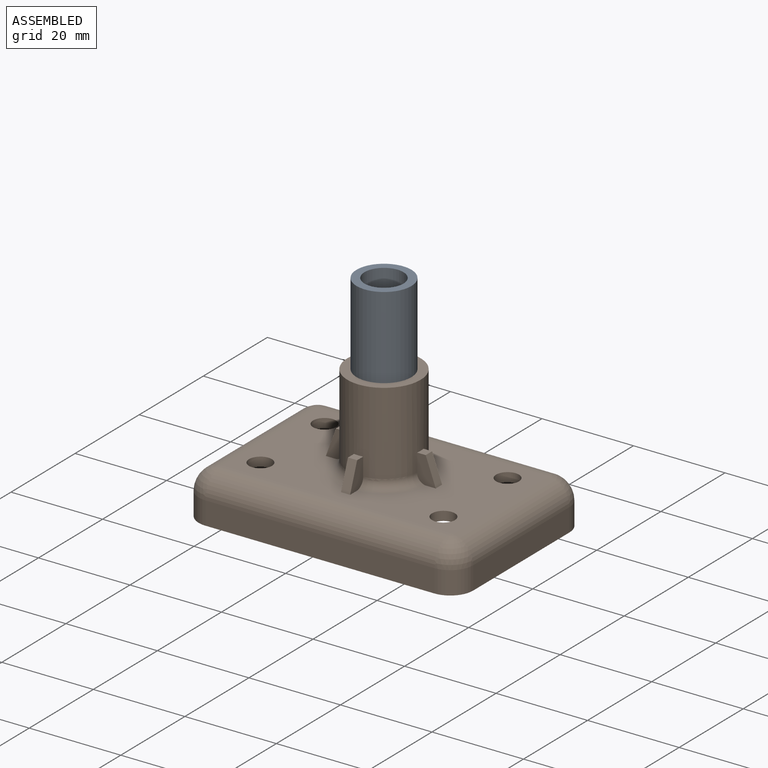
[diagram: assembled view]
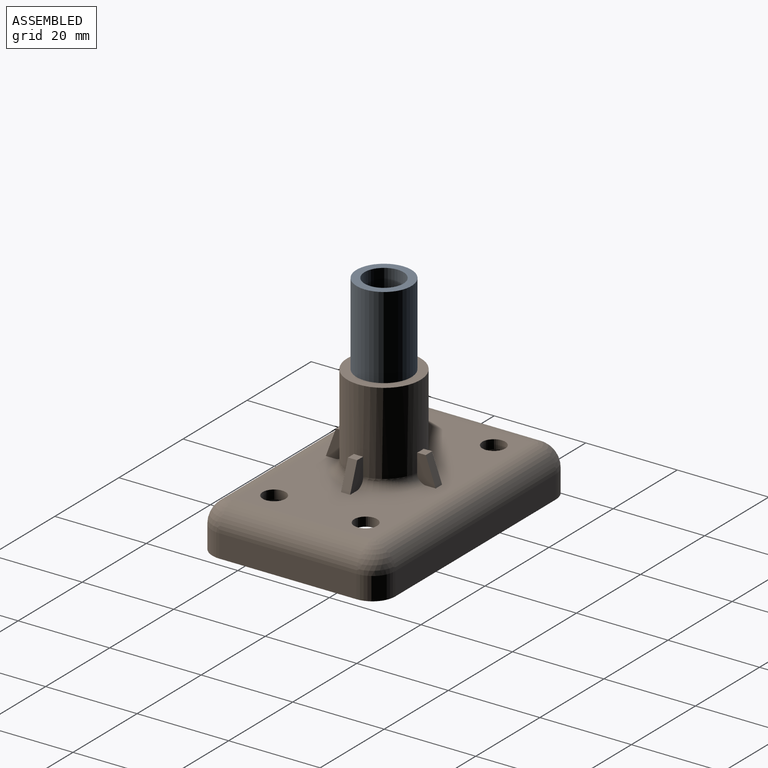
[diagram: assembled view, second angle]
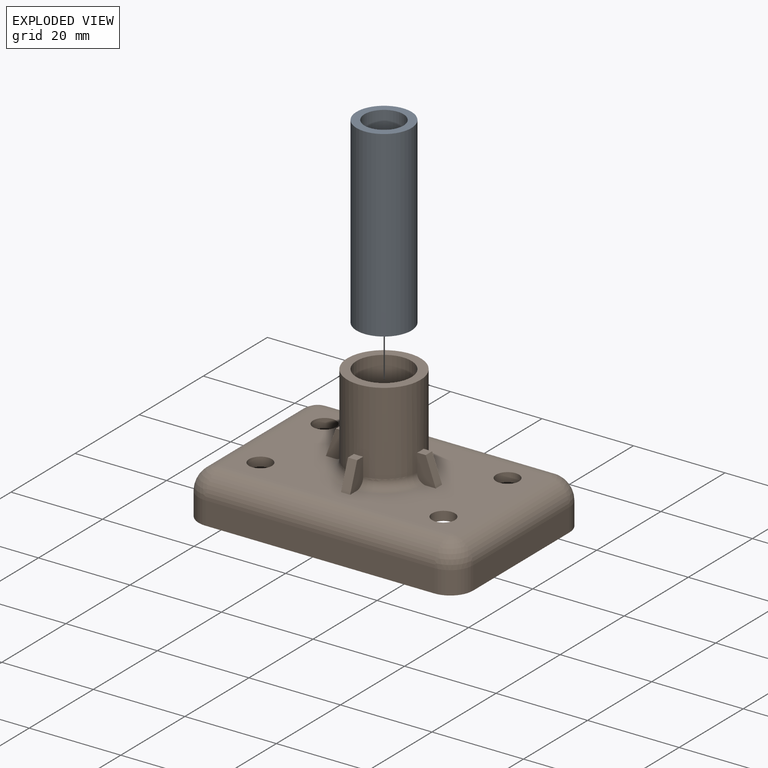
[diagram: exploded view]
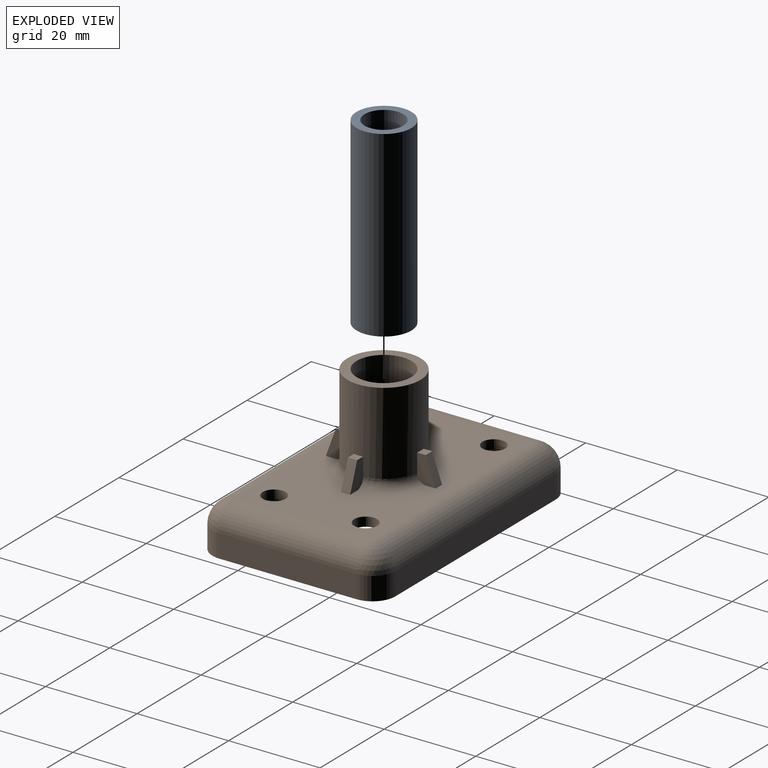
[diagram: exploded view, second angle]
ASSEMBLY  parts=2 mates=2
PART A: 4 faces, bbox 12x12x40 mm
  f0: cylinder r=4.25mm len=40mm, axis (0,0,-1), area 1068.1mm2, adj f2,f3
  f1: cylinder r=6mm len=40mm, axis (0,0,-1), area 1508mm2, adj f2,f3
  f2: plane 12x12mm, normal (0,0,1), area 56.4mm2, adj f0,f1
  f3: plane 12x12mm, normal (0,0,-1), area 56.4mm2, adj f0,f1
PART B: 63 faces, bbox 60x40x30 mm
  f0: plane 50x30mm, normal (0,0,1), area 1091.2mm2, adj f14,f15,f16,f17,f18,f19,f21,f22
  f1: plane 50x30mm, normal (0,0,-1), area 1220.4mm2, adj f14,f15,f16,f17,f37,f38,f42,f43
  f2: plane 60x40mm, normal (0,0,-1), area 370.3mm2, adj f3,f4,f5,f6,f9,f10,f11,f12
  f3: plane 50x5mm, normal (0,-1,0), area 250mm2, adj f2,f48,f54,f57
  f4: plane 30x5mm, normal (1,0,0), area 150mm2, adj f2,f51,f55,f57
  f5: plane 50x5mm, normal (0,1,0), area 250mm2, adj f2,f46,f50,f51
  f6: plane 30x5mm, normal (-1,0,0), area 150mm2, adj f2,f46,f48,f49
  f7: cylinder r=8mm len=18mm, axis (0,0,-1), area 872.7mm2, adj f8,f18,f19,f20,f22,f23,f25,f26
  f8: plane 16x16mm, normal (0,0,1), area 88mm2, adj f7,f13
  f9: plane 50x5mm, normal (0,1,0), area 250mm2, adj f2,f39,f43,f45
  f10: plane 30x5mm, normal (-1,0,0), area 150mm2, adj f2,f36,f42,f45
  f11: plane 50x5mm, normal (0,-1,0), area 250mm2, adj f2,f34,f36,f37
  f12: plane 30x5mm, normal (1,0,0), area 150mm2, adj f2,f34,f38,f39
  f13: cylinder r=6mm len=20mm, axis (0,0,-1), area 754mm2, adj f8,f62
  f14: cylinder r=2.5mm len=5mm, axis (0,0,1), area 31.4mm2, adj f0,f1
  f15: cylinder r=2.5mm len=5mm, axis (0,0,1), area 31.4mm2, adj f0,f1
  f16: cylinder r=2.5mm len=5mm, axis (0,0,1), area 31.4mm2, adj f0,f1
  f17: cylinder r=2.5mm len=5mm, axis (0,0,1), area 31.4mm2, adj f0,f1
  f18: plane 6x4.06mm, normal (1,0,0), area 17mm2, adj f0,f7,f20,f21,f59
  f19: plane 6x4.06mm, normal (-1,0,0), area 17mm2, adj f0,f7,f20,f21,f61
  f20: plane 2x1.88mm, normal (0,0,1), area 3.7mm2, adj f7,f18,f19,f21
  f21: plane 6x2.18mm, normal (0,0.94,0.34), area 12.8mm2, adj f0,f18,f19,f20
  f22: plane 6x4.06mm, normal (1,0,0), area 17mm2, adj f0,f7,f24,f25,f60
  f23: plane 6x4.06mm, normal (-1,0,0), area 17mm2, adj f0,f7,f24,f25,f58
  f24: plane 6x2.18mm, normal (0,-0.94,0.34), area 12.8mm2, adj f0,f22,f23,f25
  f25: plane 2x1.88mm, normal (0,0,1), area 3.7mm2, adj f7,f22,f23,f24
  f26: plane 6x4.06mm, normal (0,-1,0), area 17mm2, adj f0,f7,f28,f29,f60
  f27: plane 6x4.06mm, normal (0,1,0), area 17mm2, adj f0,f7,f28,f29,f59
  f28: plane 2x1.88mm, normal (0,0,1), area 3.7mm2, adj f7,f26,f27,f29
  f29: plane 6x2.18mm, normal (0.94,0,0.34), area 12.8mm2, adj f0,f26,f27,f28
  f30: plane 6x4.06mm, normal (0,-1,0), area 17mm2, adj f0,f7,f32,f33,f58
  f31: plane 6x4.06mm, normal (0,1,0), area 17mm2, adj f0,f7,f32,f33,f61
  f32: plane 6x2.18mm, normal (-0.94,0,0.34), area 12.8mm2, adj f0,f30,f31,f33
  f33: plane 2x1.88mm, normal (0,0,1), area 3.7mm2, adj f7,f30,f31,f32
  f34: cylinder r=3mm len=5mm, axis (0,0,1), area 23.6mm2, adj f2,f11,f12,f35
  f35: sphere r=3mm, area 14.1mm2, adj f34,f37,f38
  f36: cylinder r=3mm len=5mm, axis (0,0,-1), area 23.6mm2, adj f2,f10,f11,f40
  f37: cylinder r=3mm len=50mm, axis (-1,0,0), area 235.6mm2, adj f1,f11,f35,f40
  f38: cylinder r=3mm len=30mm, axis (0,-1,0), area 141.4mm2, adj f1,f12,f35,f41
  f39: cylinder r=3mm len=5mm, axis (0,0,-1), area 23.6mm2, adj f2,f9,f12,f41
  f40: sphere r=3mm, area 14.1mm2, adj f36,f37,f42
  f41: sphere r=3mm, area 14.1mm2, adj f38,f39,f43
  f42: cylinder r=3mm len=30mm, axis (0,1,0), area 141.4mm2, adj f1,f10,f40,f44
  f43: cylinder r=3mm len=50mm, axis (1,0,0), area 235.6mm2, adj f1,f9,f41,f44
  f44: sphere r=3mm, area 14.1mm2, adj f42,f43,f45
  f45: cylinder r=3mm len=5mm, axis (0,0,1), area 23.6mm2, adj f2,f9,f10,f44
  f46: cylinder r=5mm len=5mm, axis (0,0,-1), area 39.3mm2, adj f2,f5,f6,f47
  f47: sphere r=5mm, area 39.3mm2, adj f46,f49,f50
  f48: cylinder r=5mm len=5mm, axis (0,0,1), area 39.3mm2, adj f2,f3,f6,f52
  f49: cylinder r=5mm len=30mm, axis (0,1,0), area 235.6mm2, adj f0,f6,f47,f52
  f50: cylinder r=5mm len=50mm, axis (1,0,0), area 392.7mm2, adj f0,f5,f47,f53
  f51: cylinder r=5mm len=5mm, axis (0,0,1), area 39.3mm2, adj f2,f4,f5,f53
  f52: sphere r=5mm, area 39.3mm2, adj f48,f49,f54
  f53: sphere r=5mm, area 39.3mm2, adj f50,f51,f55
  f54: cylinder r=5mm len=50mm, axis (-1,0,0), area 392.7mm2, adj f0,f3,f52,f56
  f55: cylinder r=5mm len=30mm, axis (0,-1,0), area 235.6mm2, adj f0,f4,f53,f56
  f56: sphere r=5mm, area 39.3mm2, adj f54,f55,f57
  f57: cylinder r=5mm len=5mm, axis (0,0,-1), area 39.3mm2, adj f2,f3,f4,f56
  f58: torus R=10mm, axis (0,0,1), area 36.8mm2, adj f0,f7,f23,f30
  f59: torus R=10mm, axis (0,0,1), area 36.8mm2, adj f0,f7,f18,f27
  f60: torus R=10mm, axis (0,0,1), area 36.8mm2, adj f0,f7,f22,f26
  f61: torus R=10mm, axis (0,0,1), area 36.8mm2, adj f0,f7,f19,f31
  f62: torus R=8mm, axis (0,0,1), area 132.8mm2, adj f1,f13
PLACE A t=(14.2,-18.11,8)mm
PLACE B t=(14.2,-18.11,0)mm
MATE slider A.f0 <-> B.f7  axis (0,0,-1) through (14.2,-18.11,28)mm
MATE fastened A.f0 <-> B.f7  axis (0,0,-1) through (14.2,-18.11,8)mm
